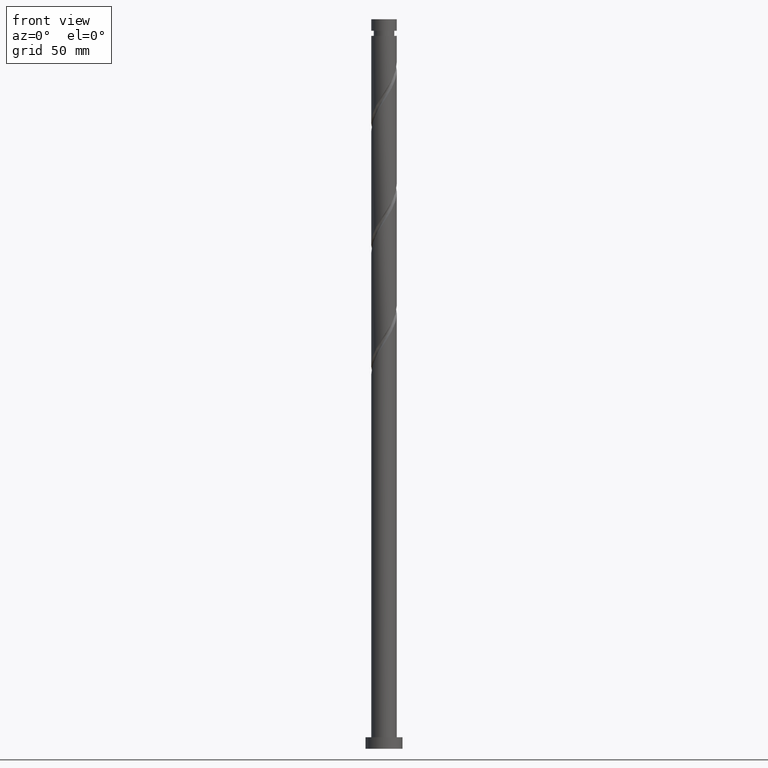
[diagram: clean part render]
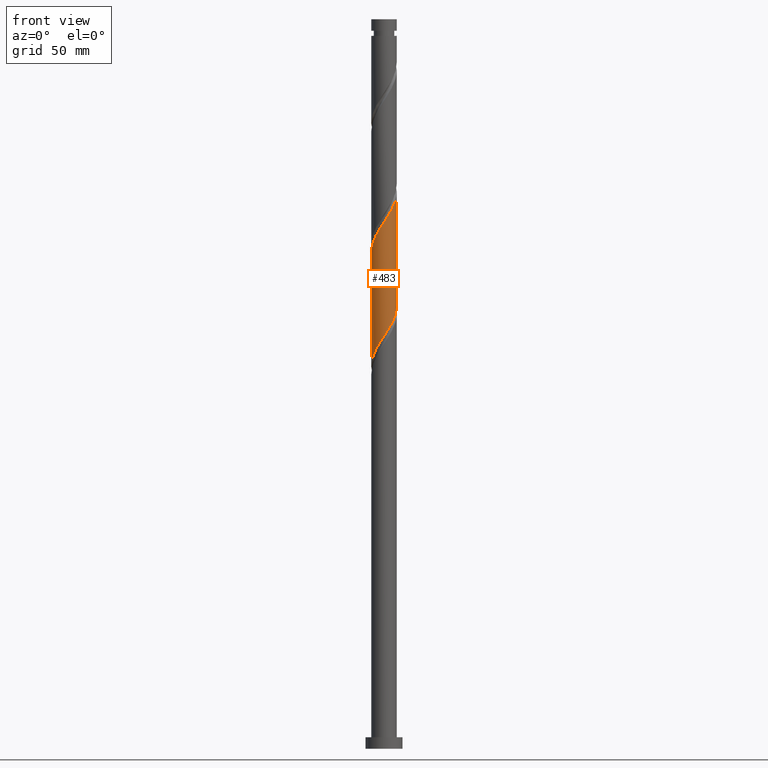
[diagram: same view with one face highlighted and labeled with its STEP entity id]
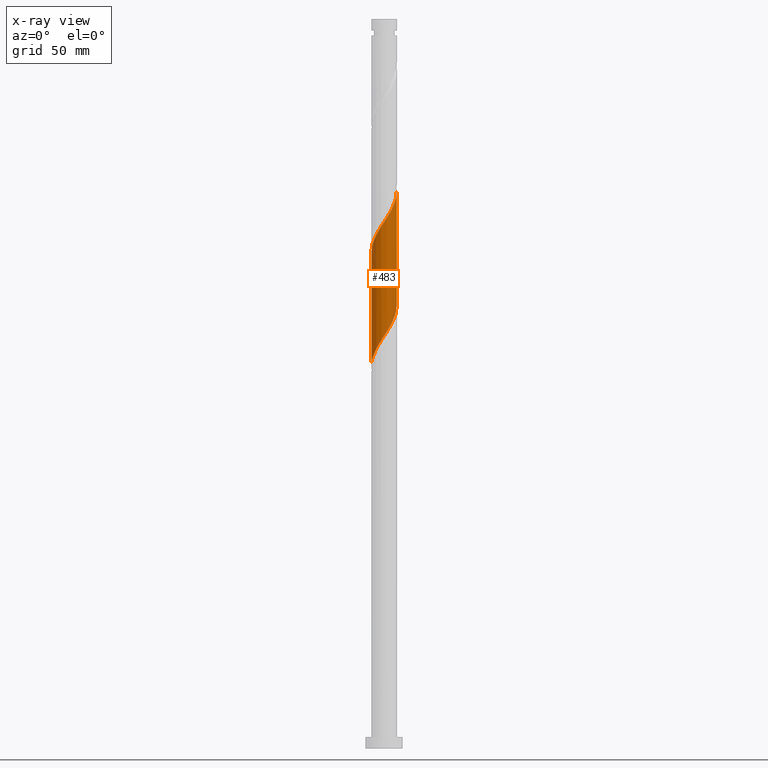
[diagram: x-ray of the same camera — body ghosted, the highlighted face saturated]
A machine part, front view. The second image highlights one B-rep face of the part: STEP entity #483.
The next image is the same camera in x-ray: the body ghosted, the highlighted face saturated — about 0% of this face is hidden behind the body in this view.
In plain terms, the highlighted cylindrical surface (edge-blend (fillet) strip) has radius 5.5 mm, axis along (-0, -0, -1).
Its self-contained STEP definition (entity closure, byte-faithful):
#9 = CARTESIAN_POINT ( 'NONE',  ( 4.006735188219775701, -3.818390062696567444, 184.9882921569054020 ) ) ;
#12 = EDGE_CURVE ( 'NONE', #297, #1813, #294, .T. ) ;
#36 = CARTESIAN_POINT ( 'NONE',  ( -5.500000000000006217, -1.440337144827273553E-15, 214.2512750789992992 ) ) ;
#43 = CARTESIAN_POINT ( 'NONE',  ( 5.500000000000006217, 6.268824879040983257E-16, 240.5012750789993561 ) ) ;
#47 = CARTESIAN_POINT ( 'NONE',  ( 2.266432961200590235, -5.011315359502294342, 230.9257921569053451 ) ) ;
#59 = CARTESIAN_POINT ( 'NONE',  ( 0.4871790347556856915, -5.513318975672735434, 228.1132921569054020 ) ) ;
#67 = CARTESIAN_POINT ( 'NONE',  ( 1.094486180817284549, -5.390000000000005898, 229.0507921569053451 ) ) ;
#117 = CARTESIAN_POINT ( 'NONE',  ( -4.216313785307721496, -3.531670718487787131, 170.9257921569053167 ) ) ;
#119 = AXIS2_PLACEMENT_3D ( 'NONE', #157, #1171, #1779 ) ;
#143 = DIRECTION ( 'NONE',  ( -0.000000000000000000, -0.000000000000000000, -1.000000000000000000 ) ) ;
#150 = CARTESIAN_POINT ( 'NONE',  ( 5.499999999999996447, -0.5527707983925779223, 190.5120381558477902 ) ) ;
#157 = CARTESIAN_POINT ( 'NONE',  ( 0.000000000000000000, 0.000000000000000000, 315.0000000000000000 ) ) ;
#163 = LINE ( 'NONE', #1331, #390 ) ;
#181 = CARTESIAN_POINT ( 'NONE',  ( 1.701793326878884072, -5.266681024327279026, 229.9882921569054020 ) ) ;
#211 = CARTESIAN_POINT ( 'NONE',  ( 5.483496091962820174, -0.7518644484526513239, 239.3632921569054304 ) ) ;
#258 = CARTESIAN_POINT ( 'NONE',  ( 3.056606248755802113, -4.614237507918880432, 183.1132921569054020 ) ) ;
#272 = VERTEX_POINT ( 'NONE', #43 ) ;
#279 = LINE ( 'NONE', #1477, #1736 ) ;
#288 = CARTESIAN_POINT ( 'NONE',  ( 4.381342441448537350, -3.324731329109428923, 185.9257921569053735 ) ) ;
#294 =( BOUNDED_CURVE ( )  B_SPLINE_CURVE ( 2, ( #435, #150, #299, #1486, #1347, #1763, #288, #9, #424, #258, #858, #385, #1148, #989, #691, #1010, #868, #1570, #1293, #848, #1283, #1449, #117, #721, #1305, #569, #416, #1022, #1602, #1174, #745 ),
 .UNSPECIFIED., .F., .T. ) 
 B_SPLINE_CURVE_WITH_KNOTS ( ( 3, 2, 2, 2, 2, 2, 2, 2, 2, 2, 2, 2, 2, 2, 2, 3 ),
 ( 0.8045303401299221946, 0.8125000000000000000, 0.8214285714285713969, 0.8303571428571429047, 0.8392857142857143016, 0.8482142857142856984, 0.8571428571428570953, 0.8660714285714286031, 0.8750000000000000000, 0.8839285714285713969, 0.8928571428571429047, 0.9017857142857143016, 0.9107142857142856984, 0.9196428571428570953, 0.9285714285714286031, 0.9295303401299220836 ),
 .UNSPECIFIED. ) 
 CURVE ( )  GEOMETRIC_REPRESENTATION_ITEM ( )  RATIONAL_B_SPLINE_CURVE ( ( 0.9079949616361979725, 0.9039886423360613543, 0.9090909090909280454, 0.9033747362666029179, 0.9090909090909280454, 0.9033747362666029179, 0.9090909090909280454, 0.9033747362666029179, 0.9090909090909280454, 0.9033747362666029179, 0.9090909090909280454, 0.9033747362666029179, 0.9090909090909280454, 0.9033747362666029179, 0.9090909090909280454, 0.9033747362666029179, 0.9090909090909280454, 0.9033747362666029179, 0.9090909090909280454, 0.9033747362666029179, 0.9090909090909280454, 0.9033747362666029179, 0.9090909090909280454, 0.9033747362666029179, 0.9090909090909280454, 0.9033747362666029179, 0.9090909090909280454, 0.9033747362666029179, 0.9090909090909280454, 0.9084770030214698311, 0.9079949616361981946 ) ) 
 REPRESENTATION_ITEM ( '' )  );
#295 = CYLINDRICAL_SURFACE ( 'NONE', #119, 5.500000000000000000 ) ;
#297 = VERTEX_POINT ( 'NONE', #1841 ) ;
#299 = CARTESIAN_POINT ( 'NONE',  ( 5.389999999999997016, -1.094486180817285437, 189.6757921569053451 ) ) ;
#350 = CARTESIAN_POINT ( 'NONE',  ( 2.831072595522295732, -4.755949694677310546, 231.8632921569053735 ) ) ;
#385 = CARTESIAN_POINT ( 'NONE',  ( 1.953206308703043792, -5.178707817116261047, 181.2382921569054304 ) ) ;
#390 = VECTOR ( 'NONE', #143, 1000.000000000000000 ) ;
#416 = CARTESIAN_POINT ( 'NONE',  ( -5.331101954539536614, -1.352535378577845337, 167.1757921569053451 ) ) ;
#424 = CARTESIAN_POINT ( 'NONE',  ( 3.531670718487787131, -4.216313785307722384, 184.0507921569053167 ) ) ;
#435 = CARTESIAN_POINT ( 'NONE',  ( 5.499999999999998224, -3.343373268821879168E-15, 191.3503092348113910 ) ) ;
#483 = ADVANCED_FACE ( 'NONE', ( #1788 ), #295, .T. ) ;
#485 = CARTESIAN_POINT ( 'NONE',  ( -3.531670718487794236, -4.216313785307728601, 221.5507921569053451 ) ) ;
#508 = CARTESIAN_POINT ( 'NONE',  ( -5.500000000000000888, -0.5527707983925955748, 215.0895461579629568 ) ) ;
#569 = CARTESIAN_POINT ( 'NONE',  ( -5.178707817116261047, -1.953206308703043792, 168.1132921569054020 ) ) ;
#608 = EDGE_LOOP ( 'NONE', ( #1243, #1453, #912, #1797 ) ) ;
#625 = CARTESIAN_POINT ( 'NONE',  ( -4.381342441448544456, -3.324731329109432476, 219.6757921569053167 ) ) ;
#636 = CARTESIAN_POINT ( 'NONE',  ( -4.755949694677310546, -2.831072595522295732, 218.7382921569054020 ) ) ;
#656 = CARTESIAN_POINT ( 'NONE',  ( 4.896472662517576069, -2.504906278729428948, 236.5507921569053735 ) ) ;
#666 = CARTESIAN_POINT ( 'NONE',  ( 5.500000000000006217, 6.268824879040982270E-16, 240.5012750789993561 ) ) ;
#691 = CARTESIAN_POINT ( 'NONE',  ( 0.1323427068484802072, -5.498407533817768034, 178.4257921569054020 ) ) ;
#721 = CARTESIAN_POINT ( 'NONE',  ( -4.614237507918880432, -3.056606248755802113, 169.9882921569053451 ) ) ;
#745 = CARTESIAN_POINT ( 'NONE',  ( -5.499999999999998224, 2.686639233874724183E-15, 165.1003092348113910 ) ) ;
#762 = DIRECTION ( 'NONE',  ( -0.000000000000000000, -0.000000000000000000, -1.000000000000000000 ) ) ;
#820 = CARTESIAN_POINT ( 'NONE',  ( -3.056606248755807886, -4.614237507918886649, 222.4882921569054020 ) ) ;
#848 = CARTESIAN_POINT ( 'NONE',  ( -2.831072595522293067, -4.755949694677300776, 173.7382921569053451 ) ) ;
#858 = CARTESIAN_POINT ( 'NONE',  ( 2.504906278729422286, -4.896472662517569852, 182.1757921569053451 ) ) ;
#868 = CARTESIAN_POINT ( 'NONE',  ( -1.094486180817284771, -5.389999999999997016, 176.5507921569052883 ) ) ;
#912 = ORIENTED_EDGE ( 'NONE', *, *, #1232, .T. ) ;
#924 = CARTESIAN_POINT ( 'NONE',  ( 5.331101954539544607, -1.352535378577850000, 238.4257921569053451 ) ) ;
#941 = CARTESIAN_POINT ( 'NONE',  ( 4.216313785307728601, -3.531670718487794680, 234.6757921569053167 ) ) ;
#951 = CARTESIAN_POINT ( 'NONE',  ( -5.011315359502294342, -2.266432961200590235, 217.8007921569053167 ) ) ;
#989 = CARTESIAN_POINT ( 'NONE',  ( 0.7518644484526477711, -5.483496091962811292, 179.3632921569053167 ) ) ;
#1010 = CARTESIAN_POINT ( 'NONE',  ( -0.4871790347556871348, -5.513318975672725664, 177.4882921569053735 ) ) ;
#1022 = CARTESIAN_POINT ( 'NONE',  ( -5.483496091962811292, -0.7518644484526477711, 166.2382921569053451 ) ) ;
#1062 = CARTESIAN_POINT ( 'NONE',  ( 3.818390062696571441, -4.006735188219782806, 233.7382921569054304 ) ) ;
#1074 = CARTESIAN_POINT ( 'NONE',  ( -1.953206308703049121, -5.178707817116268153, 224.3632921569054020 ) ) ;
#1085 = CARTESIAN_POINT ( 'NONE',  ( 4.614237507918888426, -3.056606248755808775, 235.6132921569053167 ) ) ;
#1094 = CARTESIAN_POINT ( 'NONE',  ( -2.504906278729428060, -4.896472662517576069, 223.4257921569053451 ) ) ;
#1103 = CARTESIAN_POINT ( 'NONE',  ( -5.266681024327279026, -1.701793326878884738, 216.8632921569054020 ) ) ;
#1148 = CARTESIAN_POINT ( 'NONE',  ( 1.352535378577845337, -5.331101954539536614, 180.3007921569053451 ) ) ;
#1171 = DIRECTION ( 'NONE',  ( -0.000000000000000000, -0.000000000000000000, -1.000000000000000000 ) ) ;
#1174 = CARTESIAN_POINT ( 'NONE',  ( -5.499999999999996447, -0.06618093441514481812, 165.2006719230364808 ) ) ;
#1215 = CARTESIAN_POINT ( 'NONE',  ( -4.006735188219782806, -3.818390062696571441, 220.6132921569053451 ) ) ;
#1232 = EDGE_CURVE ( 'NONE', #1823, #1813, #279, .T. ) ;
#1243 = ORIENTED_EDGE ( 'NONE', *, *, #1245, .F. ) ;
#1244 = CARTESIAN_POINT ( 'NONE',  ( -5.390000000000005898, -1.094486180817284771, 215.9257921569052883 ) ) ;
#1245 = EDGE_CURVE ( 'NONE', #272, #297, #163, .T. ) ;
#1283 = CARTESIAN_POINT ( 'NONE',  ( -3.324731329109428923, -4.381342441448537350, 172.8007921569053167 ) ) ;
#1293 = CARTESIAN_POINT ( 'NONE',  ( -2.266432961200587570, -5.011315359502285460, 174.6757921569053451 ) ) ;
#1305 = CARTESIAN_POINT ( 'NONE',  ( -4.896472662517569852, -2.504906278729422286, 169.0507921569052883 ) ) ;
#1331 = CARTESIAN_POINT ( 'NONE',  ( 5.500000000000000000, 6.735557395310442023E-16, 315.0000000000000000 ) ) ;
#1347 = CARTESIAN_POINT ( 'NONE',  ( 5.011315359502285460, -2.266432961200588014, 187.8007921569053735 ) ) ;
#1372 = CARTESIAN_POINT ( 'NONE',  ( -5.499999999999998224, 2.686639233874724183E-15, 165.1003092348113910 ) ) ;
#1374 = CARTESIAN_POINT ( 'NONE',  ( -0.1323427068484825109, -5.498407533817776915, 227.1757921569053451 ) ) ;
#1383 = CARTESIAN_POINT ( 'NONE',  ( -1.352535378577850000, -5.331101954539544607, 225.3007921569053735 ) ) ;
#1418 =( BOUNDED_CURVE ( )  B_SPLINE_CURVE ( 2, ( #1695, #508, #1244, #1103, #951, #636, #625, #1215, #485, #820, #1094, #1074, #1383, #1687, #1374, #59, #67, #181, #47, #350, #1826, #1062, #941, #1085, #656, #1817, #924, #211, #1536, #1663, #666 ),
 .UNSPECIFIED., .F., .T. ) 
 B_SPLINE_CURVE_WITH_KNOTS ( ( 3, 2, 2, 2, 2, 2, 2, 2, 2, 2, 2, 2, 2, 2, 2, 3 ),
 ( 0.3045303401299224721, 0.3125000000000000000, 0.3214285714285713969, 0.3303571428571429047, 0.3392857142857143016, 0.3482142857142856984, 0.3571428571428570953, 0.3660714285714286031, 0.3750000000000000000, 0.3839285714285713969, 0.3928571428571429047, 0.4017857142857143016, 0.4107142857142856984, 0.4196428571428570953, 0.4285714285714286031, 0.4295303401299223611 ),
 .UNSPECIFIED. ) 
 CURVE ( )  GEOMETRIC_REPRESENTATION_ITEM ( )  RATIONAL_B_SPLINE_CURVE ( ( 0.9079949616362035236, 0.9039886423360671275, 0.9090909090909338186, 0.9033747362666085801, 0.9090909090909338186, 0.9033747362666085801, 0.9090909090909338186, 0.9033747362666085801, 0.9090909090909338186, 0.9033747362666085801, 0.9090909090909338186, 0.9033747362666085801, 0.9090909090909338186, 0.9033747362666085801, 0.9090909090909338186, 0.9033747362666085801, 0.9090909090909338186, 0.9033747362666085801, 0.9090909090909338186, 0.9033747362666085801, 0.9090909090909338186, 0.9033747362666085801, 0.9090909090909338186, 0.9033747362666085801, 0.9090909090909338186, 0.9033747362666085801, 0.9090909090909338186, 0.9033747362666085801, 0.9090909090909338186, 0.9084770030214753822, 0.9079949616362035236 ) ) 
 REPRESENTATION_ITEM ( '' )  );
#1449 = CARTESIAN_POINT ( 'NONE',  ( -3.818390062696567444, -4.006735188219775701, 171.8632921569053451 ) ) ;
#1453 = ORIENTED_EDGE ( 'NONE', *, *, #1460, .F. ) ;
#1460 = EDGE_CURVE ( 'NONE', #1823, #272, #1418, .T. ) ;
#1477 = CARTESIAN_POINT ( 'NONE',  ( -5.500000000000000000, 0.000000000000000000, 315.0000000000000000 ) ) ;
#1486 = CARTESIAN_POINT ( 'NONE',  ( 5.266681024327271921, -1.701793326878884072, 188.7382921569053167 ) ) ;
#1536 = CARTESIAN_POINT ( 'NONE',  ( 5.498407533817776915, -0.1323427068484828995, 240.3007921569053735 ) ) ;
#1570 = CARTESIAN_POINT ( 'NONE',  ( -1.701793326878883406, -5.266681024327271921, 175.6132921569053451 ) ) ;
#1602 = CARTESIAN_POINT ( 'NONE',  ( -5.498407533817768034, -0.1323427068484806235, 165.3007921569053167 ) ) ;
#1663 = CARTESIAN_POINT ( 'NONE',  ( 5.500000000000005329, -0.06618093441512784558, 240.4009123907742378 ) ) ;
#1687 = CARTESIAN_POINT ( 'NONE',  ( -0.7518644484526509908, -5.483496091962820174, 226.2382921569053735 ) ) ;
#1695 = CARTESIAN_POINT ( 'NONE',  ( -5.500000000000006217, -1.440337144827273553E-15, 214.2512750789992992 ) ) ;
#1736 = VECTOR ( 'NONE', #762, 1000.000000000000000 ) ;
#1763 = CARTESIAN_POINT ( 'NONE',  ( 4.755949694677300776, -2.831072595522293067, 186.8632921569054304 ) ) ;
#1779 = DIRECTION ( 'NONE',  ( -1.000000000000000000, 0.000000000000000000, 0.000000000000000000 ) ) ;
#1788 = FACE_OUTER_BOUND ( 'NONE', #608, .T. ) ;
#1797 = ORIENTED_EDGE ( 'NONE', *, *, #12, .F. ) ;
#1813 = VERTEX_POINT ( 'NONE', #1372 ) ;
#1817 = CARTESIAN_POINT ( 'NONE',  ( 5.178707817116268153, -1.953206308703049121, 237.4882921569054588 ) ) ;
#1823 = VERTEX_POINT ( 'NONE', #36 ) ;
#1826 = CARTESIAN_POINT ( 'NONE',  ( 3.324731329109432476, -4.381342441448544456, 232.8007921569053451 ) ) ;
#1841 = CARTESIAN_POINT ( 'NONE',  ( 5.499999999999998224, -3.343373268821879168E-15, 191.3503092348113910 ) ) ;